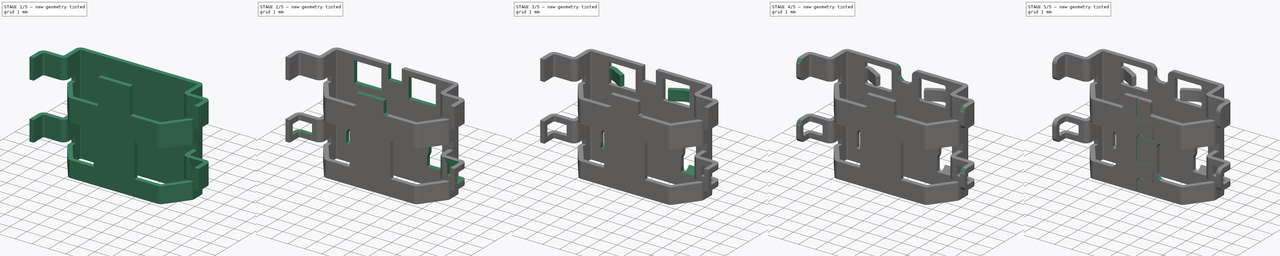
[diagram: build sequence overview — one tinted view per stage of 5, left to right]
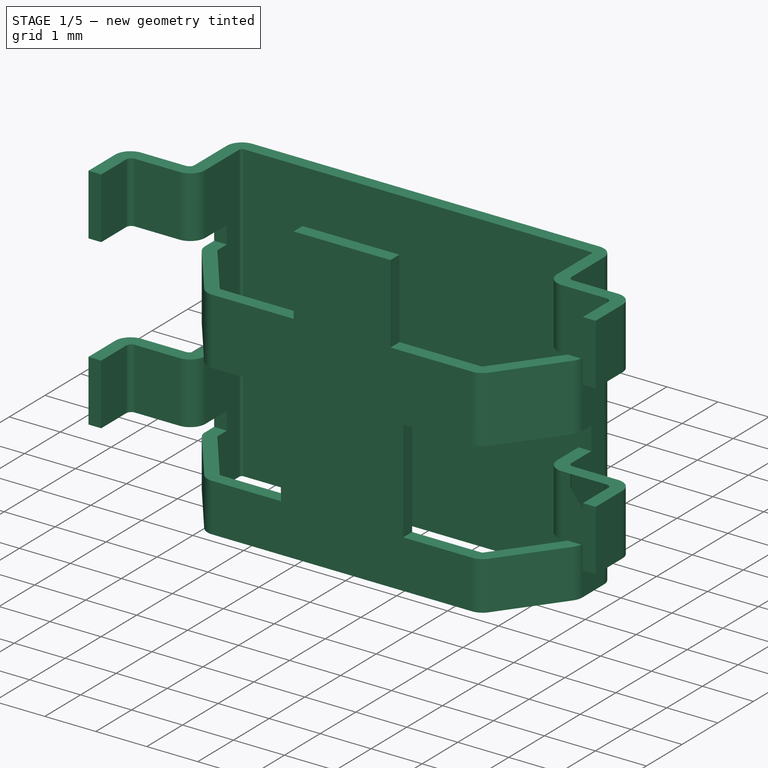
[diagram: stage 1 of 5 — iso view after this stage's code; geometry added in this stage tinted green]
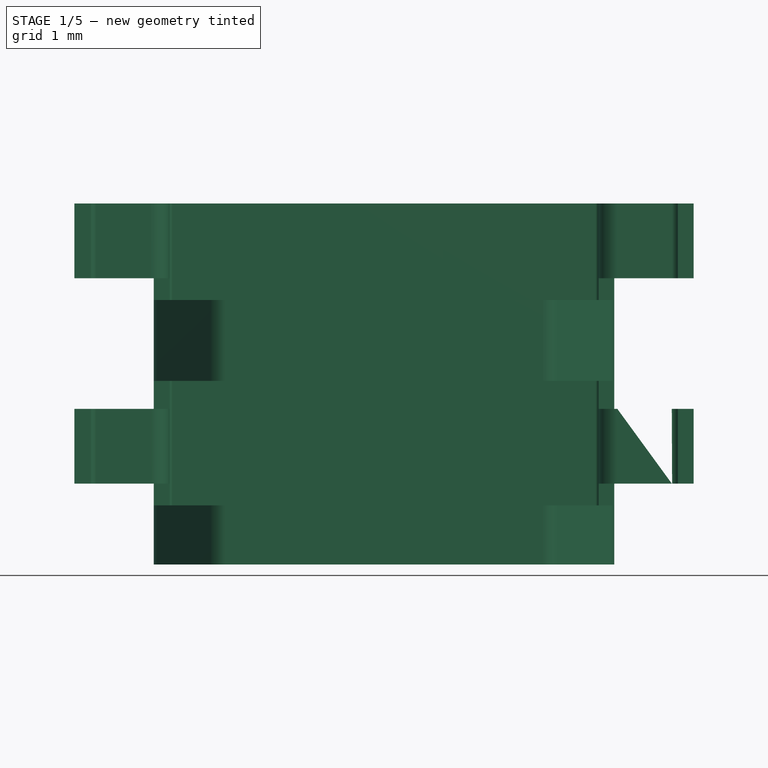
[diagram: stage 1 of 5 — front view after this stage's code; geometry added in this stage tinted green]
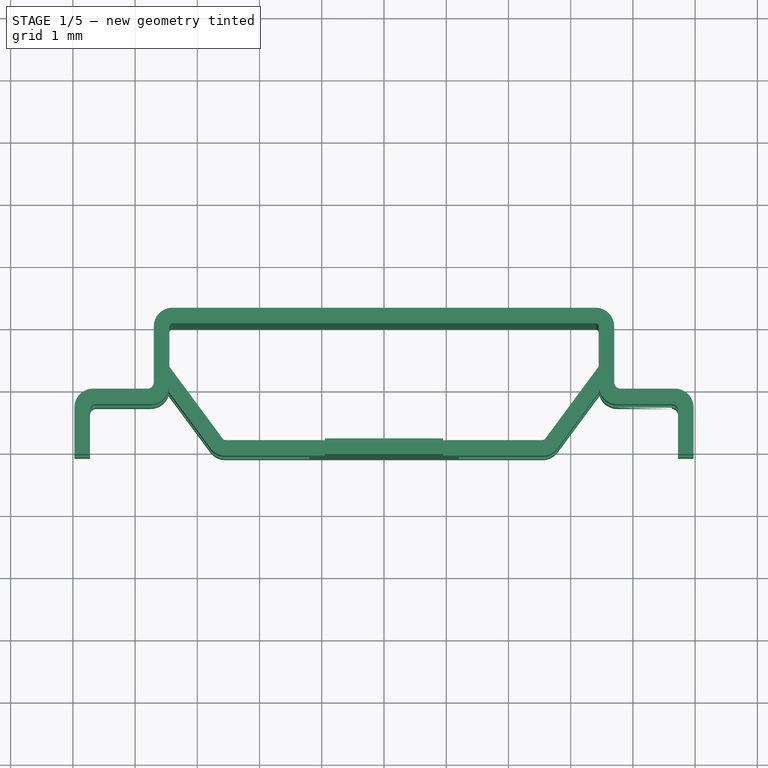
[diagram: stage 1 of 5 — top view after this stage's code; geometry added in this stage tinted green]
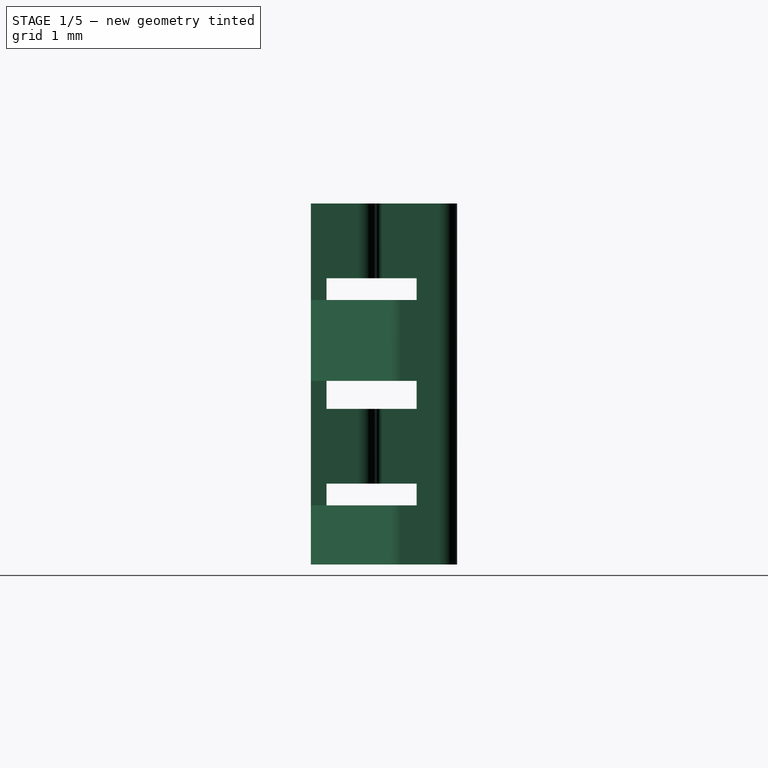
[diagram: stage 1 of 5 — right view after this stage's code; geometry added in this stage tinted green]
FCSTD DOCUMENT  (FreeCAD 0.17R12607 (Git))
Label: U02-BFD3111B0-009 Shell
License: CreativeCommons Attribution-ShareAlike
LicenseURL: http://creativecommons.org/licenses/by-sa/4.0/
objects: Sketcher::SketchObject×14, PartDesign::Fillet×10, PartDesign::Pocket×10, PartDesign::Pad×4, PartDesign::Mirrored×3, PartDesign::Plane×2, PartDesign::LinearPattern×1, PartDesign::Body×1
note: 59 computed .brp shape members not serialized (recipe doc carries the construction recipe); baked Part::Feature solids carry a one-line shape summary decoded from their .brp

FEATURE [Sketcher::SketchObject] Sketch
  MapMode = 5
  Support = -> [XY_Plane]
  sketch-geometry (9):
    g0: LineSegment StartX=-3.7 StartY=1.25 StartZ=0 EndX=3.7 EndY=1.25 EndZ=0
    g1: LineSegment [constr] StartX=3.7 StartY=1.25 StartZ=0 EndX=3.7 EndY=-1.1 EndZ=0
    g2: LineSegment [constr] StartX=3.7 StartY=-1.1 StartZ=0 EndX=-3.7 EndY=-1.1 EndZ=0
    g3: LineSegment [constr] StartX=-3.7 StartY=-1.1 StartZ=0 EndX=-3.7 EndY=1.25 EndZ=0
    g4: LineSegment StartX=3.7 StartY=1.25 StartZ=0 EndX=3.7 EndY=0.25 EndZ=0
    g5: LineSegment StartX=3.7 StartY=0.25 StartZ=0 EndX=2.7 EndY=-1.1 EndZ=0
    g6: LineSegment StartX=2.7 StartY=-1.1 StartZ=0 EndX=-2.7 EndY=-1.1 EndZ=0
    g7: LineSegment StartX=-2.7 StartY=-1.1 StartZ=0 EndX=-3.7 EndY=0.25 EndZ=0
    g8: LineSegment StartX=-3.7 StartY=0.25 StartZ=0 EndX=-3.7 EndY=1.25 EndZ=0
  constraints (27):
    c: Coincident(g0,g1)
    c: Coincident(g1,g2)
    c: Coincident(g2,g3)
    c: Coincident(g3,g0)
    c: Horizontal(g0)
    c: Horizontal(g2)
    c: Vertical(g1)
    c: Vertical(g3)
    c: Symmetric(g0,g0,g-2)
    c: DistanceX(g0,g0) = 7.4
    c: DistanceY(g1,g1) = 2.35
    c: DistanceY(g-1,g0) = 1.25
    c: PointOnObject(g4,g1)
    c: Vertical(g4)
    c: Coincident(g4,g5)
    c: PointOnObject(g5,g2)
    c: Coincident(g5,g6)
    c: PointOnObject(g6,g2)
    c: Coincident(g6,g7)
    c: PointOnObject(g7,g3)
    c: Coincident(g7,g8)
    c: Coincident(g8,g0)
    c: Equal(g7,g5)
    c: Equal(g4,g8)
    c: DistanceX(g6,g6) = 5.4
    c: DistanceY(g4,g4) = 1
    c: Coincident(g4,g0)
FEATURE [PartDesign::Pad] Pad
  Length = 5.8
  Length2 = 100
  Profile = -> Sketch
  Type = 0
FEATURE [PartDesign::Fillet] Fillet
  Base = -> Pad [Edge2,Edge5,Edge1,Edge14,Edge11,Edge8]
  BaseFeature = -> Pad
  Radius = 0.3
FEATURE [Sketcher::SketchObject] Sketch001
  ExternalGeometry = -> [Fillet]
  MapMode = 5
  Placement = pos=(0,0,5.8) rot=(0,0,1;0rad)
  Support = -> [Fillet]
  sketch-geometry (14):
    g0: LineSegment StartX=0 StartY=1 StartZ=0 EndX=3.4 EndY=1 EndZ=0
    g1: LineSegment StartX=0 StartY=-0.85 StartZ=0 EndX=2.54888 EndY=-0.85 EndZ=0
    g2: LineSegment StartX=2.58906 StartY=-0.829763 StartZ=0 EndX=3.44018 EndY=0.319247 EndZ=0
    g3: LineSegment StartX=3.45 StartY=0.349009 StartZ=0 EndX=3.45 EndY=0.95 EndZ=0
    g4: ArcOfCircle CenterX=3.4 CenterY=0.95 CenterZ=0 NormalX=0 NormalY=0 NormalZ=1 AngleXU=0 Radius=0.05 StartAngle=3.3576e-08 EndAngle=1.5708
    g5: ArcOfCircle CenterX=3.4 CenterY=0.349009 CenterZ=0 NormalX=0 NormalY=0 NormalZ=1 AngleXU=0 Radius=0.05 StartAngle=5.64563 EndAngle=6.28319
    g6: ArcOfCircle CenterX=2.54888 CenterY=-0.8 CenterZ=0 NormalX=0 NormalY=0 NormalZ=1 AngleXU=0 Radius=0.05 StartAngle=4.7124 EndAngle=5.6456
    g7: LineSegment StartX=0 StartY=1 StartZ=0 EndX=-3.4 EndY=1 EndZ=0
    g8: LineSegment StartX=-3.45 StartY=0.95 StartZ=0 EndX=-3.45 EndY=0.349009 EndZ=0
    g9: LineSegment StartX=0 StartY=-0.85 StartZ=0 EndX=-2.54888 EndY=-0.85 EndZ=0
    g10: ArcOfCircle CenterX=-3.4 CenterY=0.95 CenterZ=0 NormalX=0 NormalY=0 NormalZ=1 AngleXU=0 Radius=0.05 StartAngle=1.5708 EndAngle=3.14159
    g11: LineSegment StartX=-3.44018 StartY=0.319247 StartZ=0 EndX=-2.58906 EndY=-0.829763 EndZ=0
    g12: ArcOfCircle CenterX=-3.4 CenterY=0.349009 CenterZ=0 NormalX=0 NormalY=0 NormalZ=1 AngleXU=0 Radius=0.05 StartAngle=3.14159 EndAngle=3.77914
    g13: ArcOfCircle CenterX=-2.54888 CenterY=-0.800001 CenterZ=0 NormalX=0 NormalY=0 NormalZ=1 AngleXU=0 Radius=0.0499992 StartAngle=3.77917 EndAngle=4.71239
  constraints (39):
    c: PointOnObject(g0,g-2)
    c: Horizontal(g0)
    c: PointOnObject(g1,g-2)
    c: Horizontal(g1)
    c: Vertical(g3)
    c: Coincident(g4,g-3)
    c: Coincident(g4,g0)
    c: Coincident(g4,g3)
    c: Tangent(g4,g0)
    c: Tangent(g3,g4)
    c: Distance(g-3,g0) = 0.25
    c: Coincident(g5,g-4)
    c: Coincident(g5,g3)
    c: Coincident(g5,g2)
    c: Coincident(g6,g-5)
    c: Coincident(g6,g2)
    c: Coincident(g6,g1)
    c: Tangent(g3,g5)
    c: Tangent(g5,g2)
    c: Tangent(g6,g1)
    c: Distance(g-5,g1) = 0.25
    c: Coincident(g7,g0)
    c: Coincident(g9,g1)
    c: Coincident(g10,g7)
    c: Coincident(g10,g8)
    c: Symmetric(g0,g7,g-2)
    c: Symmetric(g8,g3,g-2)
    c: Coincident(g12,g8)
    c: Coincident(g12,g11)
    c: Coincident(g13,g11)
    c: Coincident(g13,g9)
    c: Symmetric(g8,g3,g-2)
    c: Symmetric(g11,g2,g-2)
    c: Symmetric(g11,g2,g-2)
    c: Symmetric(g9,g1,g-2)
    c: Tangent(g9,g13)
    c: Tangent(g11,g12)
    c: Tangent(g10,g7)
    c: Distance(g-5,g2) = 0.25
FEATURE [PartDesign::Pocket] Pocket
  BaseFeature = -> Fillet
  Length = 5
  Profile = -> Sketch001
  Type = 1
FEATURE [Sketcher::SketchObject] Sketch002
  ExternalGeometry = -> [Pocket]
  MapMode = 5
  Placement = pos=(0,-1.1,0) rot=(1,0,0;1.5708rad)
  Support = -> [Pocket]
  sketch-geometry (16):
    g0: LineSegment StartX=3.7 StartY=0.95 StartZ=0 EndX=1.2 EndY=0.95 EndZ=0
    g1: LineSegment StartX=1.2 StartY=0.95 StartZ=0 EndX=1.2 EndY=2.95 EndZ=0
    g2: LineSegment StartX=1.2 StartY=2.95 StartZ=0 EndX=3.7 EndY=2.95 EndZ=0
    g3: LineSegment StartX=3.7 StartY=2.95 StartZ=0 EndX=3.7 EndY=0.95 EndZ=0
    g4: LineSegment StartX=3.7 StartY=5.8 StartZ=0 EndX=0.95 EndY=5.8 EndZ=0
    g5: LineSegment StartX=0.95 StartY=5.8 StartZ=0 EndX=0.95 EndY=4.25 EndZ=0
    g6: LineSegment StartX=0.95 StartY=4.25 StartZ=0 EndX=3.7 EndY=4.25 EndZ=0
    g7: LineSegment StartX=3.7 StartY=4.25 StartZ=0 EndX=3.7 EndY=5.8 EndZ=0
    g8: LineSegment StartX=-3.7 StartY=5.8 StartZ=0 EndX=-0.95 EndY=5.8 EndZ=0
    g9: LineSegment StartX=-0.95 StartY=5.8 StartZ=0 EndX=-0.95 EndY=4.25 EndZ=0
    g10: LineSegment StartX=-0.95 StartY=4.25 StartZ=0 EndX=-3.7 EndY=4.25 EndZ=0
    g11: LineSegment StartX=-3.7 StartY=4.25 StartZ=0 EndX=-3.7 EndY=5.8 EndZ=0
    g12: LineSegment StartX=-3.7 StartY=2.95 StartZ=0 EndX=-1.2 EndY=2.95 EndZ=0
    g13: LineSegment StartX=-1.2 StartY=2.95 StartZ=0 EndX=-1.2 EndY=0.95 EndZ=0
    g14: LineSegment StartX=-1.2 StartY=0.95 StartZ=0 EndX=-3.7 EndY=0.95 EndZ=0
    g15: LineSegment StartX=-3.7 StartY=0.95 StartZ=0 EndX=-3.7 EndY=2.95 EndZ=0
  constraints (43):
    c: Coincident(g0,g1)
    c: Coincident(g1,g2)
    c: Coincident(g2,g3)
    c: Coincident(g3,g0)
    c: Horizontal(g0)
    c: Horizontal(g2)
    c: Vertical(g1)
    c: Vertical(g3)
    c: PointOnObject(g0,g-3)
    c: Coincident(g4,g5)
    c: Coincident(g5,g6)
    c: Coincident(g6,g7)
    c: Coincident(g7,g4)
    c: Horizontal(g4)
    c: Horizontal(g6)
    c: Vertical(g5)
    c: Vertical(g7)
    c: Coincident(g4,g-3)
    c: Distance(g-3,g0) = 0.95
    c: DistanceY(g3,g3) = 2
    c: DistanceY(g-1,g6) = 4.25
    c: DistanceX(g0,g0) = 2.5
    c: DistanceX(g4,g4) = 2.75
    c: Coincident(g8,g9)
    c: Coincident(g9,g10)
    c: Coincident(g10,g11)
    c: Coincident(g11,g8)
    c: Horizontal(g8)
    c: Horizontal(g10)
    c: Vertical(g9)
    c: Vertical(g11)
    c: Coincident(g12,g13)
    c: Coincident(g13,g14)
    c: Coincident(g14,g15)
    c: Coincident(g15,g12)
    c: Horizontal(g12)
    c: Horizontal(g14)
    c: Vertical(g13)
    c: Vertical(g15)
    c: Symmetric(g4,g8,g-2)
    c: Symmetric(g9,g5,g-2)
    c: Symmetric(g14,g0,g-2)
    c: Symmetric(g12,g1,g-2)
FEATURE [PartDesign::Pocket] Pocket001
  BaseFeature = -> Pocket
  Length = 1.7
  Profile = -> Sketch002
  Type = 0
FEATURE [Sketcher::SketchObject] Sketch003
  ExternalGeometry = -> [Pocket001]
  MapMode = 5
  Placement = pos=(0,0,5.8) rot=(0,0,1;0rad)
  Support = -> [Pocket001]
  sketch-geometry (24):
    g0: LineSegment StartX=3.45 StartY=-1.587e-08 StartZ=0 EndX=3.45 EndY=0.6 EndZ=0
    g1: LineSegment StartX=3.45 StartY=0.6 StartZ=0 EndX=3.7 EndY=0.6 EndZ=0
    g2: LineSegment StartX=4.975 StartY=-0.35 StartZ=0 EndX=4.975 EndY=-1.1 EndZ=0
    g3: LineSegment StartX=4.975 StartY=-1.1 StartZ=0 EndX=4.725 EndY=-1.1 EndZ=0
    g4: LineSegment StartX=4.725 StartY=-1.1 StartZ=0 EndX=4.725 EndY=-0.4 EndZ=0
    g5: LineSegment StartX=4.625 StartY=-0.3 StartZ=0 EndX=3.75 EndY=-0.3 EndZ=0
    g6: ArcOfCircle CenterX=4.675 CenterY=-0.35 CenterZ=0 NormalX=0 NormalY=0 NormalZ=1 AngleXU=0 Radius=0.3 StartAngle=5.6586e-08 EndAngle=1.5708
    g7: ArcOfCircle CenterX=3.75 CenterY=0 CenterZ=0 NormalX=0 NormalY=0 NormalZ=1 AngleXU=0 Radius=0.3 StartAngle=3.14159 EndAngle=4.71239
    g8: ArcOfCircle CenterX=4.625 CenterY=-0.4 CenterZ=0 NormalX=0 NormalY=0 NormalZ=1 AngleXU=0 Radius=0.1 StartAngle=6.28319 EndAngle=7.85398
    g9: LineSegment StartX=3.7 StartY=0.6 StartZ=0 EndX=3.7 EndY=0.05 EndZ=0
    g10: LineSegment StartX=4.675 StartY=-0.05 StartZ=0 EndX=3.8 EndY=-0.05 EndZ=0
    g11: ArcOfCircle CenterX=3.8 CenterY=0.05 CenterZ=0 NormalX=0 NormalY=0 NormalZ=1 AngleXU=0 Radius=0.1 StartAngle=3.14159 EndAngle=4.71239
    g12: LineSegment StartX=-3.7 StartY=0.05 StartZ=0 EndX=-3.7 EndY=0.6 EndZ=0
    g13: LineSegment StartX=-3.7 StartY=0.6 StartZ=0 EndX=-3.45 EndY=0.6 EndZ=0
    g14: LineSegment StartX=-3.45 StartY=0.6 StartZ=0 EndX=-3.45 EndY=-1.587e-08 EndZ=0
    g15: LineSegment StartX=-3.8 StartY=-0.05 StartZ=0 EndX=-4.675 EndY=-0.05 EndZ=0
    g16: LineSegment StartX=-4.975 StartY=-0.35 StartZ=0 EndX=-4.975 EndY=-1.1 EndZ=0
    g17: LineSegment StartX=-4.975 StartY=-1.1 StartZ=0 EndX=-4.725 EndY=-1.1 EndZ=0
    g18: LineSegment StartX=-4.725 StartY=-1.1 StartZ=0 EndX=-4.725 EndY=-0.4 EndZ=0
    g19: LineSegment StartX=-4.625 StartY=-0.3 StartZ=0 EndX=-3.75 EndY=-0.3 EndZ=0
    g20: ArcOfCircle CenterX=-3.8 CenterY=0.050003 CenterZ=0 NormalX=0 NormalY=0 NormalZ=1 AngleXU=0 Radius=0.100003 StartAngle=4.71242 EndAngle=6.28316
    g21: ArcOfCircle CenterX=-4.675 CenterY=-0.35 CenterZ=0 NormalX=0 NormalY=0 NormalZ=1 AngleXU=0 Radius=0.3 StartAngle=1.5708 EndAngle=3.14159
    g22: ArcOfCircle CenterX=-4.625 CenterY=-0.4 CenterZ=0 NormalX=0 NormalY=0 NormalZ=1 AngleXU=0 Radius=0.1 StartAngle=1.5708 EndAngle=3.14159
    g23: ArcOfCircle CenterX=-3.75 CenterY=-3.2224e-08 CenterZ=0 NormalX=0 NormalY=0 NormalZ=1 AngleXU=0 Radius=0.3 StartAngle=4.71239 EndAngle=6.28319
  constraints (68):
    c: Coincident(g0,g1)
    c: Coincident(g1,g-4)
    c: Horizontal(g1)
    c: Vertical(g0)
    c: Coincident(g0,g-4)
    c: Vertical(g2)
    c: Coincident(g3,g2)
    c: Horizontal(g3)
    c: Coincident(g4,g3)
    c: Vertical(g4)
    c: Horizontal(g5)
    c: Coincident(g6,g2)
    c: Coincident(g7,g5)
    c: Coincident(g7,g0)
    c: Equal(g1,g3)
    c: Tangent(g2,g6)
    c: Tangent(g0,g7)
    c: Tangent(g5,g7)
    c: Coincident(g8,g5)
    c: Coincident(g8,g4)
    c: Tangent(g8,g5)
    c: Tangent(g8,g4)
    c: Distance(g-3,g5) = 1.3
    c: PointOnObject(g3,g-5)
    c: DistanceX(g-2,g3) = 4.725
    c: Equal(g7,g6)
    c: Radius(g8) = 0.1
    c: PointOnObject(g9,g1)
    c: Vertical(g9)
    c: Coincident(g10,g6)
    c: Horizontal(g10)
    c: Coincident(g11,g10)
    c: Coincident(g11,g9)
    c: Equal(g8,g11)
    c: Tangent(g9,g11)
    c: Tangent(g10,g11)
    c: Coincident(g9,g1)
    c: Distance(g10,g5) = 0.25
    c: Tangent(g10,g6)
    c: Radius(g6) = 0.3
    c: Coincident(g12,g13)
    c: Coincident(g13,g14)
    c: Coincident(g16,g17)
    c: Coincident(g17,g18)
    c: Coincident(g20,g12)
    c: Coincident(g20,g15)
    c: Coincident(g21,g15)
    c: Coincident(g21,g16)
    c: Coincident(g22,g18)
    c: Coincident(g22,g19)
    c: Coincident(g23,g19)
    c: Coincident(g23,g14)
    c: Symmetric(g12,g1,g-2)
    c: Symmetric(g13,g0,g-2)
    c: Symmetric(g12,g9,g-2)
    c: Symmetric(g0,g14,g-2)
    c: Symmetric(g10,g15,g-2)
    c: Symmetric(g6,g15,g-2)
    c: Symmetric(g2,g16,g-2)
    c: Symmetric(g2,g16,g-2)
    c: Symmetric(g3,g17,g-2)
    c: Symmetric(g4,g18,g-2)
    c: Symmetric(g5,g19,g-2)
    c: Symmetric(g5,g19,g-2)
    c: Tangent(g14,g23)
    c: Tangent(g21,g16)
    c: Tangent(g19,g22)
    c: Tangent(g12,g20)
FEATURE [PartDesign::Pad] Pad001
  BaseFeature = -> Pocket001
  Length = 1.2
  Length2 = 100
  Profile = -> Sketch003
  Reversed = true
  Type = 0
FEATURE [PartDesign::LinearPattern] LinearPattern
  Direction = -> Sketch003 [N_Axis]
  Length = 3.3
  Occurrences = 2
  Originals = -> [Pad001]
  Reversed = true
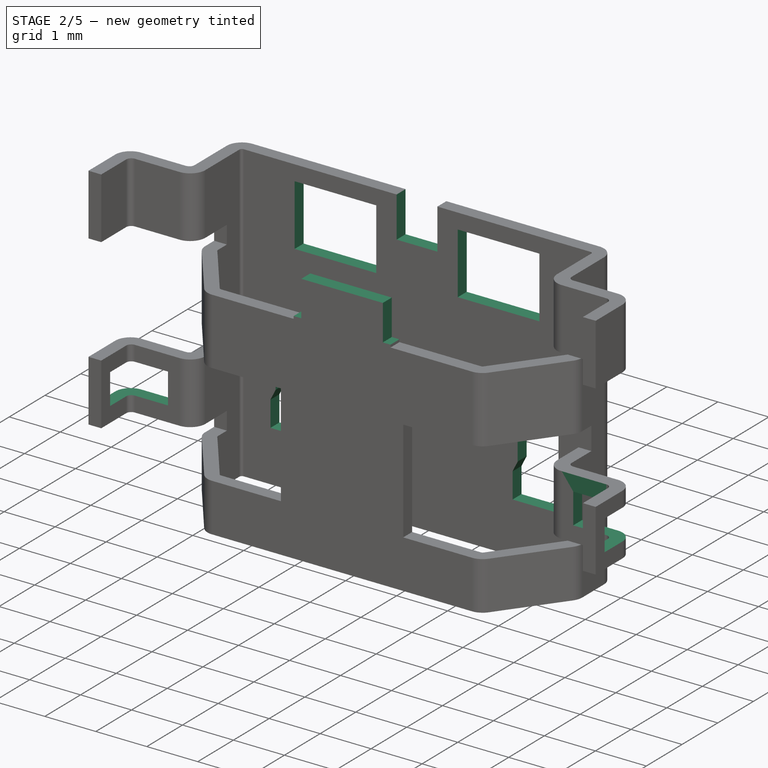
[diagram: stage 2 of 5 — iso view after this stage's code; geometry added in this stage tinted green]
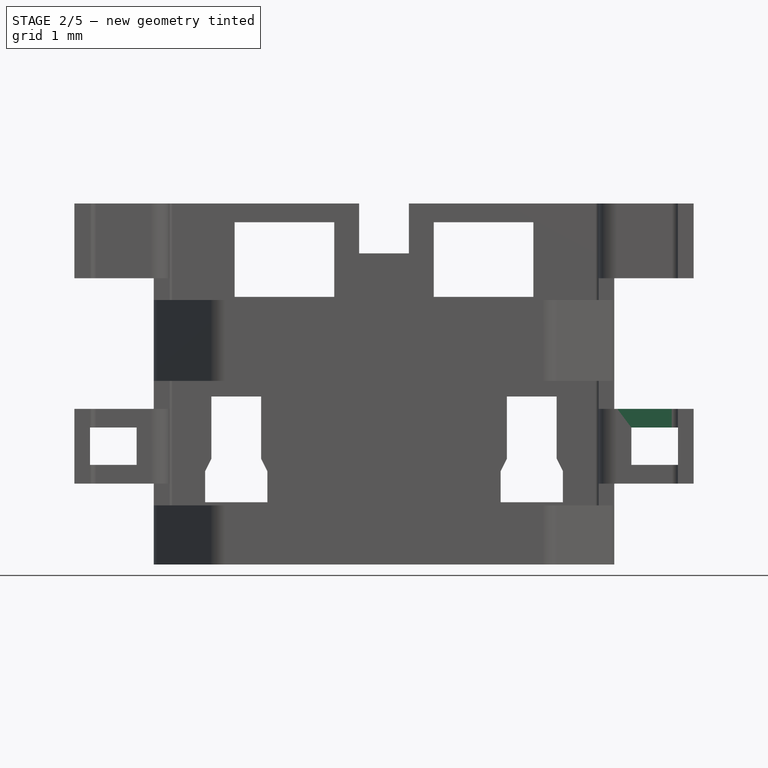
[diagram: stage 2 of 5 — front view after this stage's code; geometry added in this stage tinted green]
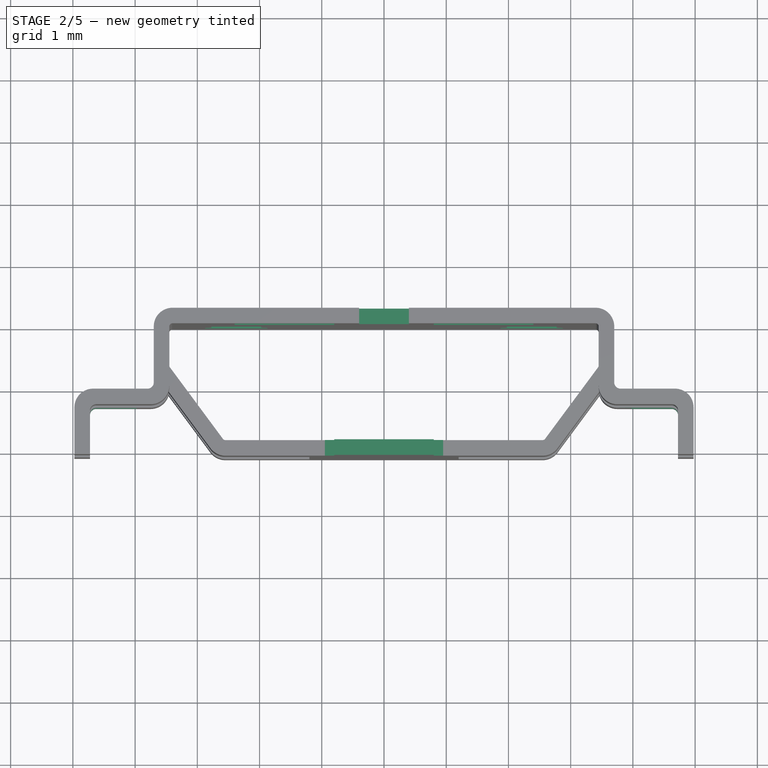
[diagram: stage 2 of 5 — top view after this stage's code; geometry added in this stage tinted green]
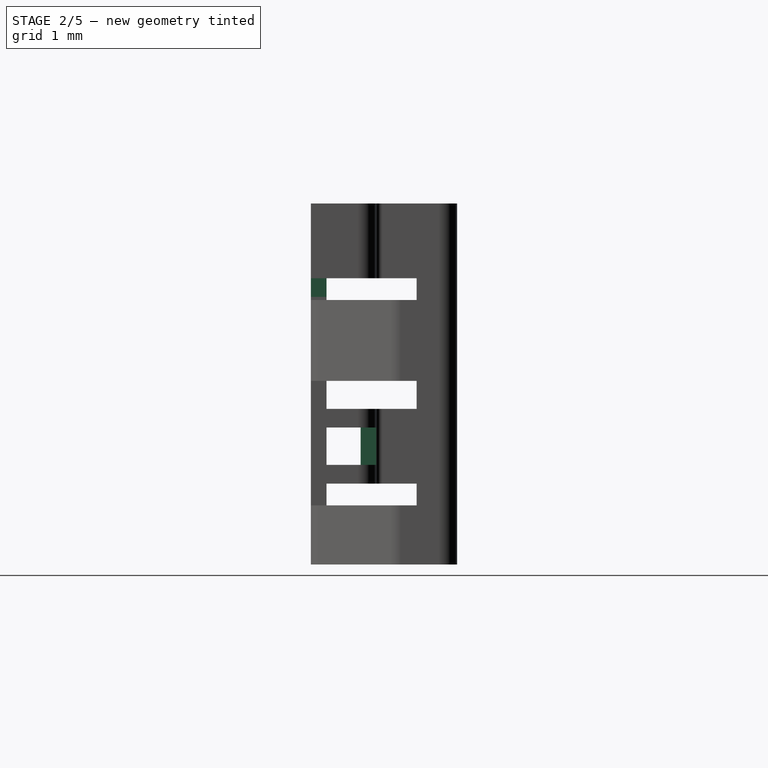
[diagram: stage 2 of 5 — right view after this stage's code; geometry added in this stage tinted green]
FEATURE [Sketcher::SketchObject] Sketch004
  ExternalGeometry = -> [LinearPattern]
  MapMode = 5
  Placement = pos=(0,-1.1,0) rot=(1,0,0;1.5708rad)
  Support = -> [LinearPattern]
  sketch-geometry (4):
    g0: LineSegment StartX=0.95 StartY=5.8 StartZ=0 EndX=-0.95 EndY=5.8 EndZ=0
    g1: LineSegment StartX=-0.95 StartY=5.8 StartZ=0 EndX=-0.95 EndY=5 EndZ=0
    g2: LineSegment StartX=-0.95 StartY=5 StartZ=0 EndX=0.95 EndY=5 EndZ=0
    g3: LineSegment StartX=0.95 StartY=5 StartZ=0 EndX=0.95 EndY=5.8 EndZ=0
  constraints (11):
    c: Coincident(g0,g1)
    c: Coincident(g1,g2)
    c: Coincident(g2,g3)
    c: Coincident(g3,g0)
    c: Horizontal(g0)
    c: Horizontal(g2)
    c: Vertical(g1)
    c: Vertical(g3)
    c: Coincident(g0,g-3)
    c: Distance(g-3,g2) = 0.75
    c: Symmetric(g2,g1,g-2)
FEATURE [PartDesign::Pocket] Pocket002
  BaseFeature = -> LinearPattern
  Length = 5
  Profile = -> Sketch004
  Type = 2
FEATURE [Sketcher::SketchObject] Sketch005
  ExternalGeometry = -> [Pocket002]
  MapMode = 5
  Placement = pos=(0,1.25,0) rot=(0,0.707107,0.707107;3.14159rad)
  Support = -> [Pocket002]
  sketch-geometry (4):
    g0: LineSegment StartX=-0.4 StartY=5.8 StartZ=0 EndX=0.4 EndY=5.8 EndZ=0
    g1: LineSegment StartX=0.4 StartY=5.8 StartZ=0 EndX=0.4 EndY=5 EndZ=0
    g2: LineSegment StartX=0.4 StartY=5 StartZ=0 EndX=-0.4 EndY=5 EndZ=0
    g3: LineSegment StartX=-0.4 StartY=5 StartZ=0 EndX=-0.4 EndY=5.8 EndZ=0
  constraints (12):
    c: Coincident(g0,g1)
    c: Coincident(g1,g2)
    c: Coincident(g2,g3)
    c: Coincident(g3,g0)
    c: Horizontal(g0)
    c: Horizontal(g2)
    c: Vertical(g1)
    c: Vertical(g3)
    c: PointOnObject(g0,g-3)
    c: Equal(g0,g1)
    c: DistanceX(g0,g0) = 0.8
    c: Symmetric(g0,g0,g-2)
FEATURE [PartDesign::Pocket] Pocket003
  BaseFeature = -> Pocket002
  Length = 5
  Profile = -> Sketch005
  Type = 2
FEATURE [Sketcher::SketchObject] Sketch006
  ExternalGeometry = -> [Pocket003]
  MapMode = 5
  Placement = pos=(-4.975,0,0) rot=(0.57735,-0.57735,-0.57735;2.0944rad)
  Support = -> [Pocket003]
  sketch-geometry (4):
    g0: LineSegment StartX=0.05 StartY=2.2 StartZ=0 EndX=0.85 EndY=2.2 EndZ=0
    g1: LineSegment StartX=0.85 StartY=2.2 StartZ=0 EndX=0.85 EndY=1.6 EndZ=0
    g2: LineSegment StartX=0.85 StartY=1.6 StartZ=0 EndX=0.05 EndY=1.6 EndZ=0
    g3: LineSegment StartX=0.05 StartY=1.6 StartZ=0 EndX=0.05 EndY=2.2 EndZ=0
  constraints (12):
    c: Coincident(g0,g1)
    c: Coincident(g1,g2)
    c: Coincident(g2,g3)
    c: Coincident(g3,g0)
    c: Horizontal(g0)
    c: Horizontal(g2)
    c: Vertical(g1)
    c: Vertical(g3)
    c: PointOnObject(g0,g-3)
    c: DistanceY(g1,g1) = 0.6
    c: DistanceX(g2,g2) = 0.8
    c: Distance(g-3,g0) = 0.3
FEATURE [PartDesign::Pocket] Pocket004
  BaseFeature = -> Pocket003
  Length = 1
  Profile = -> Sketch006
  Type = 0
FEATURE [PartDesign::Mirrored] Mirrored
  MirrorPlane = -> YZ_Plane
  Originals = -> [Pocket004]
FEATURE [Sketcher::SketchObject] Sketch007
  MapMode = 5
  Placement = pos=(0,1.25,0) rot=(0,0.707107,0.707107;3.14159rad)
  Support = -> [Mirrored]
  sketch-geometry (24):
    g0: LineSegment StartX=0.8 StartY=5.5 StartZ=0 EndX=2.4 EndY=5.5 EndZ=0
    g1: LineSegment StartX=2.4 StartY=5.5 StartZ=0 EndX=2.4 EndY=4.3 EndZ=0
    g2: LineSegment StartX=2.4 StartY=4.3 StartZ=0 EndX=0.8 EndY=4.3 EndZ=0
    g3: LineSegment StartX=0.8 StartY=4.3 StartZ=0 EndX=0.8 EndY=5.5 EndZ=0
    g4: LineSegment StartX=1.975 StartY=1.7 StartZ=0 EndX=1.975 EndY=2.7 EndZ=0
    g5: LineSegment StartX=1.975 StartY=2.7 StartZ=0 EndX=2.775 EndY=2.7 EndZ=0
    g6: LineSegment StartX=2.775 StartY=2.7 StartZ=0 EndX=2.775 EndY=1.7 EndZ=0
    g7: LineSegment StartX=2.775 StartY=1.7 StartZ=0 EndX=2.875 EndY=1.5 EndZ=0
    g8: LineSegment StartX=2.875 StartY=1.5 StartZ=0 EndX=2.875 EndY=1 EndZ=0
    g9: LineSegment StartX=2.875 StartY=1 StartZ=0 EndX=1.875 EndY=1 EndZ=0
    g10: LineSegment StartX=1.875 StartY=1 StartZ=0 EndX=1.875 EndY=1.5 EndZ=0
    g11: LineSegment StartX=1.875 StartY=1.5 StartZ=0 EndX=1.975 EndY=1.7 EndZ=0
    g12: LineSegment StartX=-2.4 StartY=5.5 StartZ=0 EndX=-0.8 EndY=5.5 EndZ=0
    g13: LineSegment StartX=-0.8 StartY=5.5 StartZ=0 EndX=-0.8 EndY=4.3 EndZ=0
    g14: LineSegment StartX=-0.8 StartY=4.3 StartZ=0 EndX=-2.4 EndY=4.3 EndZ=0
    g15: LineSegment StartX=-2.4 StartY=4.3 StartZ=0 EndX=-2.4 EndY=5.5 EndZ=0
    g16: LineSegment StartX=-2.775 StartY=1.7 StartZ=0 EndX=-2.775 EndY=2.7 EndZ=0
    g17: LineSegment StartX=-2.775 StartY=2.7 StartZ=0 EndX=-1.975 EndY=2.7 EndZ=0
    g18: LineSegment StartX=-1.975 StartY=2.7 StartZ=0 EndX=-1.975 EndY=1.7 EndZ=0
    g19: LineSegment StartX=-1.975 StartY=1.7 StartZ=0 EndX=-1.875 EndY=1.5 EndZ=0
    g20: LineSegment StartX=-1.875 StartY=1.5 StartZ=0 EndX=-1.875 EndY=1 EndZ=0
    g21: LineSegment StartX=-1.875 StartY=1 StartZ=0 EndX=-2.875 EndY=1 EndZ=0
    g22: LineSegment StartX=-2.875 StartY=1 StartZ=0 EndX=-2.875 EndY=1.5 EndZ=0
    g23: LineSegment StartX=-2.875 StartY=1.5 StartZ=0 EndX=-2.775 EndY=1.7 EndZ=0
  constraints (62):
    c: Coincident(g0,g1)
    c: Coincident(g1,g2)
    c: Coincident(g2,g3)
    c: Coincident(g3,g0)
    c: Horizontal(g0)
    c: Horizontal(g2)
    c: Vertical(g1)
    c: Vertical(g3)
    c: Vertical(g4)
    c: Coincident(g4,g5)
    c: Horizontal(g5)
    c: Coincident(g5,g6)
    c: Vertical(g6)
    c: Coincident(g6,g7)
    c: Coincident(g7,g8)
    c: Vertical(g8)
    c: Coincident(g8,g9)
    c: Coincident(g9,g10)
    c: Vertical(g10)
    c: Coincident(g10,g11)
    c: Coincident(g11,g4)
    c: Equal(g10,g8)
    c: Equal(g7,g11)
    c: Equal(g6,g4)
    c: Horizontal(g9)
    c: DistanceX(g5,g5) = 0.8
    c: DistanceX(g9,g9) = 1
    c: Equal(g9,g6)
    c: Distance(g8,g5) = 1.7
    c: DistanceY(g8,g8) = 0.5
    c: DistanceX(g9) = 1.875
    c: DistanceY(g9) = 1
    c: DistanceY(g1,g1) = 1.2
    c: DistanceX(g2) = 0.8
    c: DistanceY(g2) = 4.3
    c: DistanceX(g0,g0) = 1.6
    c: Coincident(g12,g13)
    c: Coincident(g13,g14)
    c: Coincident(g14,g15)
    c: Coincident(g15,g12)
    c: Horizontal(g12)
    c: Horizontal(g14)
    c: Vertical(g13)
    c: Vertical(g15)
    c: Symmetric(g13,g2,g-2)
    c: Symmetric(g0,g12,g-2)
    c: Coincident(g16,g17)
    c: Coincident(g17,g18)
    c: Coincident(g18,g19)
    c: Coincident(g19,g20)
    c: Coincident(g20,g21)
    c: Coincident(g21,g22)
    c: Coincident(g22,g23)
    c: Coincident(g23,g16)
    c: Symmetric(g9,g20,g-2)
    c: Symmetric(g21,g8,g-2)
    c: Symmetric(g22,g7,g-2)
    c: Symmetric(g16,g6,g-2)
    c: Symmetric(g16,g5,g-2)
    c: Symmetric(g17,g4,g-2)
    c: Symmetric(g18,g4,g-2)
    c: Symmetric(g19,g10,g-2)
FEATURE [PartDesign::Pocket] Pocket005
  BaseFeature = -> Mirrored
  Length = 0.25
  Profile = -> Sketch007
  Type = 1
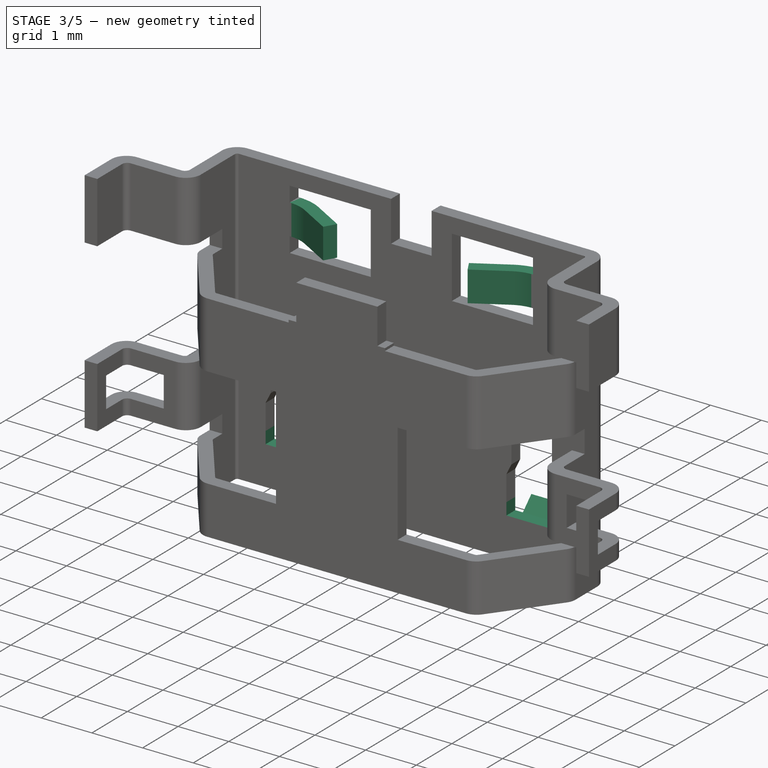
[diagram: stage 3 of 5 — iso view after this stage's code; geometry added in this stage tinted green]
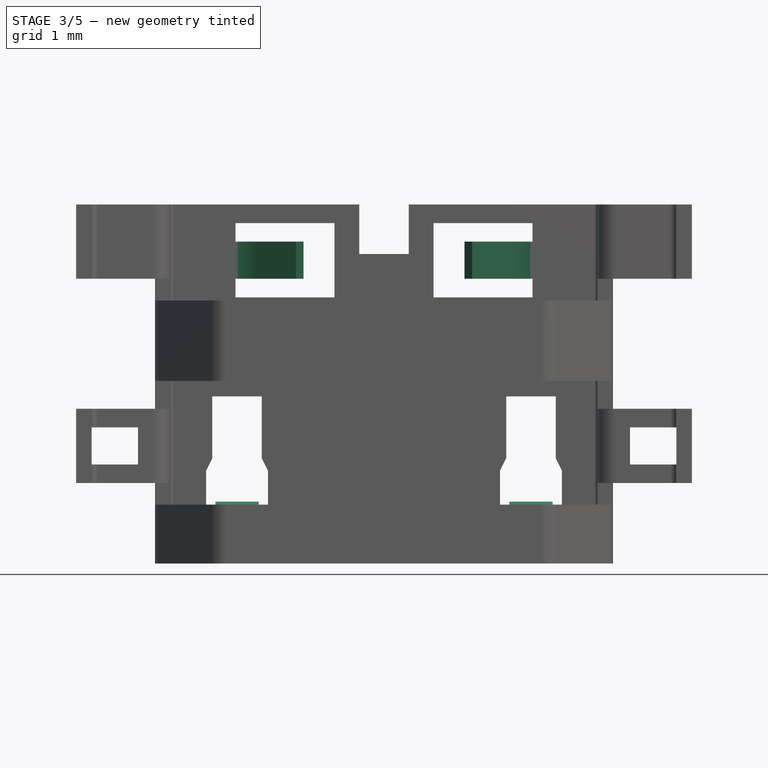
[diagram: stage 3 of 5 — front view after this stage's code; geometry added in this stage tinted green]
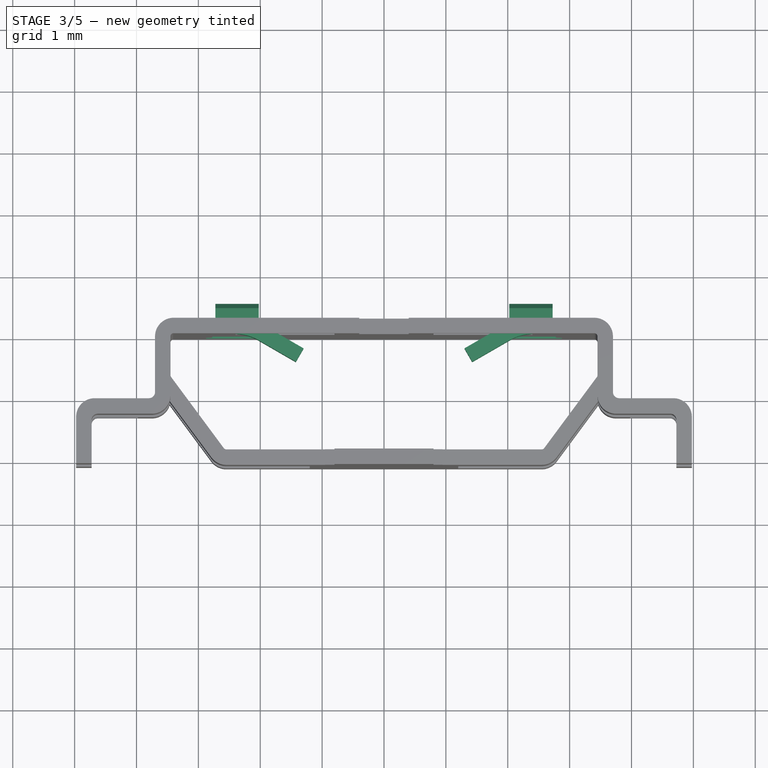
[diagram: stage 3 of 5 — top view after this stage's code; geometry added in this stage tinted green]
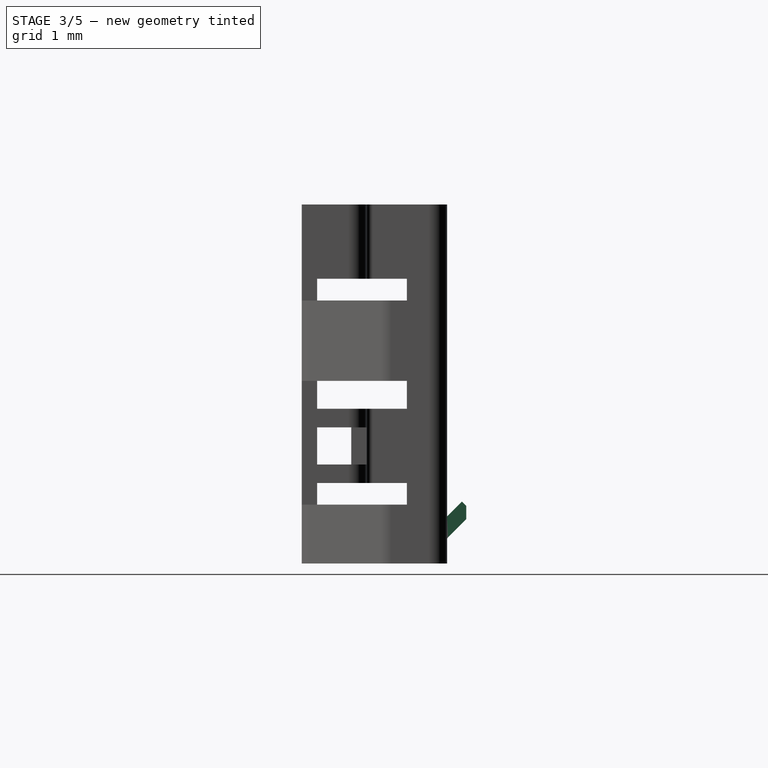
[diagram: stage 3 of 5 — right view after this stage's code; geometry added in this stage tinted green]
FEATURE [PartDesign::Plane] DatumPlane
  AttachmentOffset = pos=(0,0,-4.9) rot=(0,0,1;0rad)
  MapMode = 5
  Placement = pos=(0,0,4.9) rot=(1,0,0;3.14159rad)
  Support = -> [Pocket005]
FEATURE [Sketcher::SketchObject] Sketch008
  ExternalGeometry = -> [Pocket005]
  MapMode = 5
  Placement = pos=(0,0,4.9) rot=(1,0,0;3.14159rad)
  Support = -> [DatumPlane]
  sketch-geometry (6):
    g0: LineSegment StartX=-2.03504 StartY=-0.902208 StartZ=0 EndX=-1.425 EndY=-0.55 EndZ=0
    g1: LineSegment StartX=-1.425 StartY=-0.55 StartZ=0 EndX=-1.3 EndY=-0.766506 EndZ=0
    g2: LineSegment StartX=-1.3 StartY=-0.766506 StartZ=0 EndX=-1.91005 EndY=-1.11872 EndZ=0
    g3: ArcOfCircle CenterX=-2.4 CenterY=-0.270096 CenterZ=0 NormalX=0 NormalY=0 NormalZ=1 AngleXU=0 Radius=0.729904 StartAngle=4.71239 EndAngle=5.236
    g4: ArcOfCircle CenterX=-2.4 CenterY=-0.270096 CenterZ=0 NormalX=0 NormalY=0 NormalZ=1 AngleXU=0 Radius=0.979904 StartAngle=4.71239 EndAngle=5.23599
    g5: LineSegment StartX=-2.4 StartY=-1 StartZ=0 EndX=-2.4 EndY=-1.25 EndZ=0
  constraints (18):
    c: Coincident(g0,g1)
    c: Coincident(g1,g2)
    c: Coincident(g3,g0)
    c: Coincident(g3,g-3)
    c: Coincident(g4,g2)
    c: Coincident(g4,g-3)
    c: Coincident(g5,g3)
    c: Coincident(g5,g4)
    c: Tangent(g0,g3)
    c: Tangent(g2,g4)
    c: Perpendicular(g1,g0)
    c: Perpendicular(g2,g1)
    c: Distance(g1,g5) = 1.1
    c: Perpendicular(g3,g5)
    c: Perpendicular(g4,g5)
    c: Distance(g0,g2) = 0.25
    c: Angle(g5,g0) = 2.0944
    c: Distance(g0,g-4) = 0.7
FEATURE [PartDesign::Pad] Pad002
  BaseFeature = -> Pocket005
  Length = 0.6
  Length2 = 100
  Midplane = true
  Profile = -> Sketch008
  Type = 0
FEATURE [PartDesign::Mirrored] Mirrored001
  MirrorPlane = -> YZ_Plane
  Originals = -> [Pad002]
FEATURE [PartDesign::Plane] DatumPlane001
  AttachmentOffset = pos=(0,0,-2.375) rot=(0,0,1;0rad)
  MapMode = 5
  Placement = pos=(-2.375,0,0) rot=(0.57735,0.57735,0.57735;2.0944rad)
  Support = -> [YZ_Plane]
FEATURE [Sketcher::SketchObject] Sketch009
  ExternalGeometry = -> [Mirrored001]
  MapMode = 5
  Placement = pos=(-2.375,0,0) rot=(0.57735,0.57735,0.57735;2.0944rad)
  Support = -> [DatumPlane001]
  sketch-geometry (7):
    g0: LineSegment StartX=1.26464 StartY=0.421802 StartZ=0 EndX=1.56 EndY=0.717157 EndZ=0
    g1: LineSegment StartX=1.56 StartY=0.717157 StartZ=0 EndX=1.56 EndY=0.929289 EndZ=0
    g2: LineSegment StartX=1.56 StartY=0.929289 StartZ=0 EndX=1.48929 EndY=1 EndZ=0
    g3: LineSegment StartX=1.48929 StartY=1 StartZ=0 EndX=1.08787 EndY=0.598579 EndZ=0
    g4: ArcOfCircle CenterX=1.3 CenterY=0.386447 CenterZ=0 NormalX=0 NormalY=0 NormalZ=1 AngleXU=0 Radius=0.05 StartAngle=2.35619 EndAngle=3.14159
    g5: ArcOfCircle CenterX=1.3 CenterY=0.386447 CenterZ=0 NormalX=0 NormalY=0 NormalZ=1 AngleXU=0 Radius=0.3 StartAngle=2.35619 EndAngle=3.14159
    g6: LineSegment StartX=1 StartY=0.386447 StartZ=0 EndX=1.25 EndY=0.386447 EndZ=0
  constraints (23):
    c: Coincident(g0,g1)
    c: Vertical(g1)
    c: Coincident(g1,g2)
    c: Coincident(g2,g3)
    c: Coincident(g4,g0)
    c: Coincident(g5,g3)
    c: Tangent(g3,g5)
    c: Tangent(g4,g0)
    c: Perpendicular(g3,g2)
    c: Parallel(g3,g0)
    c: Angle(g1,g0) = 2.35619
    c: Distance(g2,g0) = 0.25
    c: Distance(g1,g3) = 0.1
    c: Coincident(g6,g5)
    c: Coincident(g6,g4)
    c: Horizontal(g6)
    c: PointOnObject(g5,g-4)
    c: PointOnObject(g4,g-5)
    c: Perpendicular(g4,g6)
    c: Perpendicular(g5,g6)
    c: Distance(g1,g-4) = 0.56
    c: Radius(g5) = 0.3
    c: DistanceY(g-1,g2) = 1
FEATURE [PartDesign::Pad] Pad003
  BaseFeature = -> Mirrored001
  Length = 0.7
  Length2 = 100
  Midplane = true
  Profile = -> Sketch009
  Type = 0
FEATURE [PartDesign::Mirrored] Mirrored002
  MirrorPlane = -> YZ_Plane
  Originals = -> [Pad003]
FEATURE [Sketcher::SketchObject] Sketch010
  ExternalGeometry = -> [Mirrored002]
  MapMode = 5
  Placement = pos=(0,0,1) rot=(0,0,1;0rad)
  Support = -> [Mirrored002]
  sketch-geometry (8):
    g0: LineSegment StartX=-2.875 StartY=1.25 StartZ=0 EndX=-1.875 EndY=1.25 EndZ=0
    g1: LineSegment StartX=-1.875 StartY=1.25 StartZ=0 EndX=-1.875 EndY=1 EndZ=0
    g2: LineSegment StartX=-1.875 StartY=1 StartZ=0 EndX=-2.875 EndY=1 EndZ=0
    g3: LineSegment StartX=-2.875 StartY=1 StartZ=0 EndX=-2.875 EndY=1.25 EndZ=0
    g4: LineSegment StartX=1.875 StartY=1.25 StartZ=0 EndX=2.875 EndY=1.25 EndZ=0
    g5: LineSegment StartX=2.875 StartY=1.25 StartZ=0 EndX=2.875 EndY=1 EndZ=0
    g6: LineSegment StartX=2.875 StartY=1 StartZ=0 EndX=1.875 EndY=1 EndZ=0
    g7: LineSegment StartX=1.875 StartY=1 StartZ=0 EndX=1.875 EndY=1.25 EndZ=0
  constraints (20):
    c: Coincident(g0,g1)
    c: Coincident(g1,g2)
    c: Coincident(g2,g3)
    c: Coincident(g3,g0)
    c: Horizontal(g0)
    c: Horizontal(g2)
    c: Vertical(g1)
    c: Vertical(g3)
    c: Coincident(g0,g-4)
    c: Coincident(g1,g-3)
    c: Coincident(g4,g5)
    c: Coincident(g5,g6)
    c: Coincident(g6,g7)
    c: Coincident(g7,g4)
    c: Horizontal(g4)
    c: Horizontal(g6)
    c: Vertical(g5)
    c: Vertical(g7)
    c: Coincident(g4,g-5)
    c: Coincident(g5,g-6)
FEATURE [PartDesign::Pocket] Pocket006
  BaseFeature = -> Mirrored002
  Length = 0.237
  Profile = -> Sketch010
  Type = 0
FEATURE [Sketcher::SketchObject] Sketch011
  MapMode = 5
  Placement = pos=(0,1.25,0) rot=(0,0.707107,0.707107;3.14159rad)
  Support = -> [Pocket006]
  sketch-geometry (8):
    g0: LineSegment StartX=2 StartY=3.95 StartZ=0 EndX=2.85 EndY=3.95 EndZ=0
    g1: LineSegment StartX=2.85 StartY=3.95 StartZ=0 EndX=2.85 EndY=3.4 EndZ=0
    g2: LineSegment StartX=2.85 StartY=3.4 StartZ=0 EndX=2 EndY=3.4 EndZ=0
    g3: LineSegment StartX=2 StartY=3.4 StartZ=0 EndX=2 EndY=3.95 EndZ=0
    g4: LineSegment StartX=-2.85 StartY=3.95 StartZ=0 EndX=-2 EndY=3.95 EndZ=0
    g5: LineSegment StartX=-2 StartY=3.95 StartZ=0 EndX=-2 EndY=3.4 EndZ=0
    g6: LineSegment StartX=-2 StartY=3.4 StartZ=0 EndX=-2.85 EndY=3.4 EndZ=0
    g7: LineSegment StartX=-2.85 StartY=3.4 StartZ=0 EndX=-2.85 EndY=3.95 EndZ=0
  constraints (22):
    c: Coincident(g0,g1)
    c: Coincident(g1,g2)
    c: Coincident(g2,g3)
    c: Coincident(g3,g0)
    c: Horizontal(g0)
    c: Horizontal(g2)
    c: Vertical(g1)
    c: Vertical(g3)
    c: Coincident(g4,g5)
    c: Coincident(g5,g6)
    c: Coincident(g6,g7)
    c: Coincident(g7,g4)
    c: Horizontal(g4)
    c: Horizontal(g6)
    c: Vertical(g5)
    c: Vertical(g7)
    c: DistanceX(g2) = 2
    c: DistanceY(g2) = 3.4
    c: DistanceY(g1,g1) = 0.55
    c: DistanceX(g2,g2) = 0.85
    c: Symmetric(g0,g4,g-2)
    c: Symmetric(g6,g1,g-2)
FEATURE [PartDesign::Pocket] Pocket007
  BaseFeature = -> Pocket006
  Length = 0.1
  Profile = -> Sketch011
  Type = 0
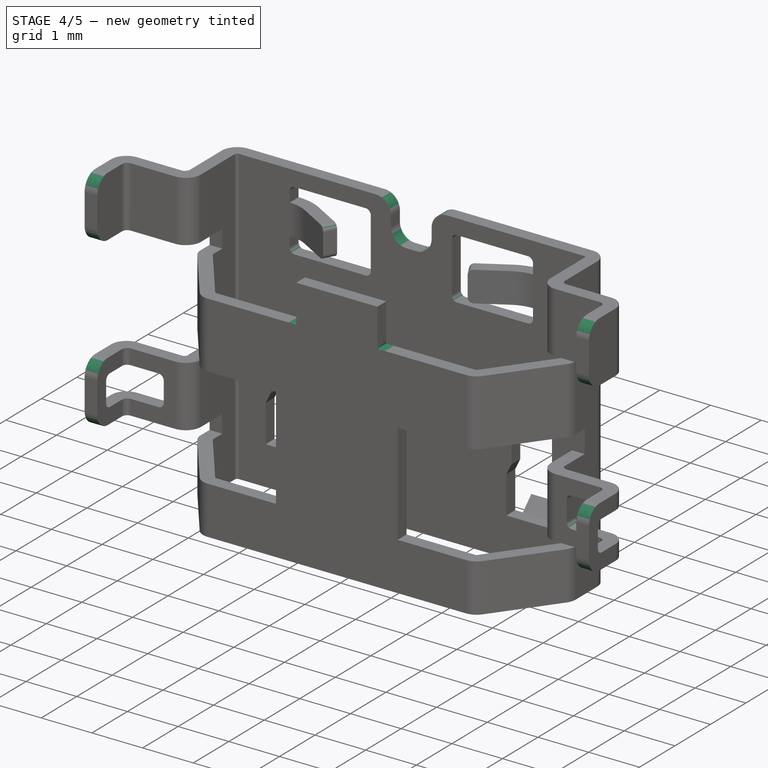
[diagram: stage 4 of 5 — iso view after this stage's code; geometry added in this stage tinted green]
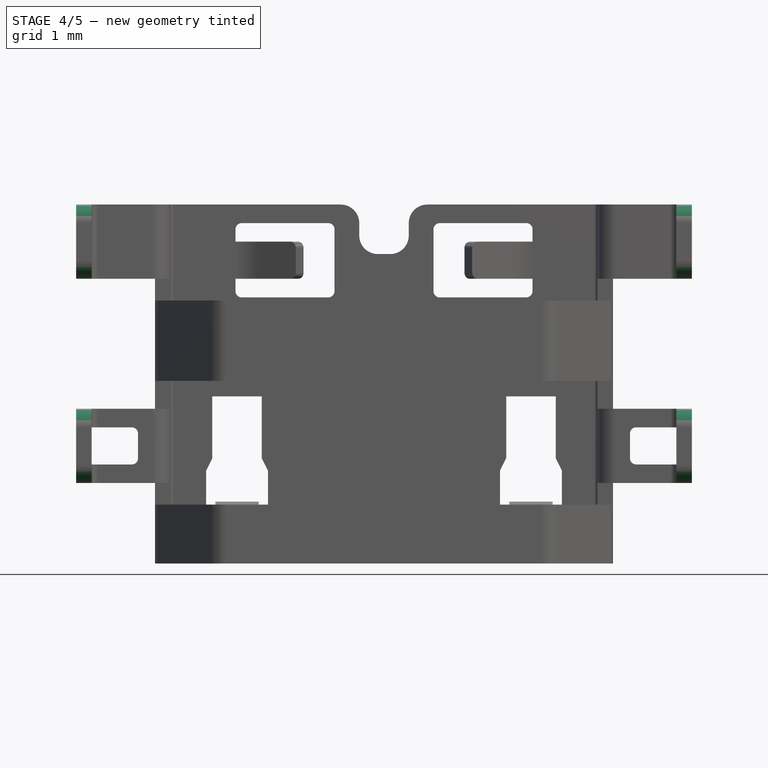
[diagram: stage 4 of 5 — front view after this stage's code; geometry added in this stage tinted green]
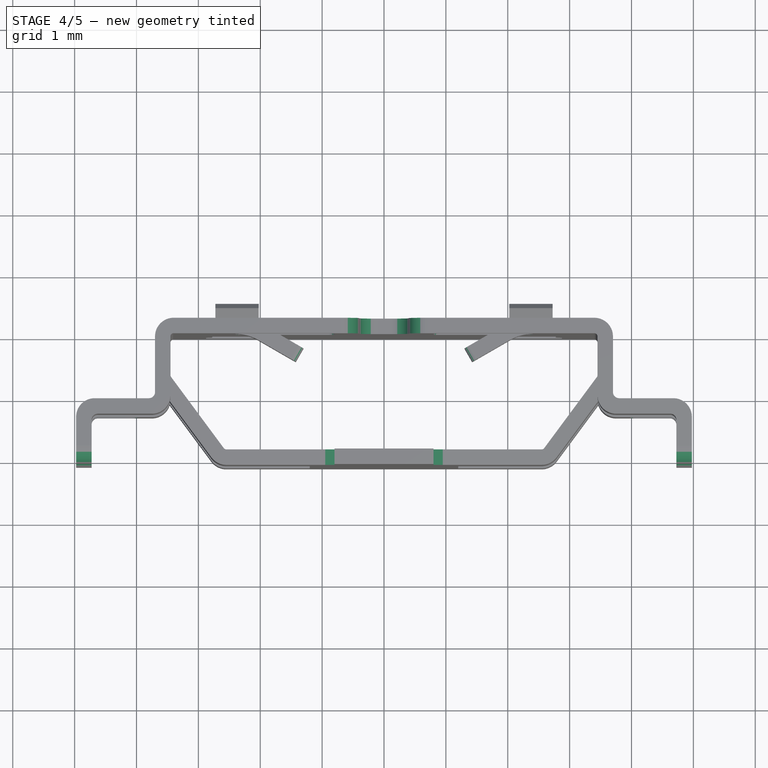
[diagram: stage 4 of 5 — top view after this stage's code; geometry added in this stage tinted green]
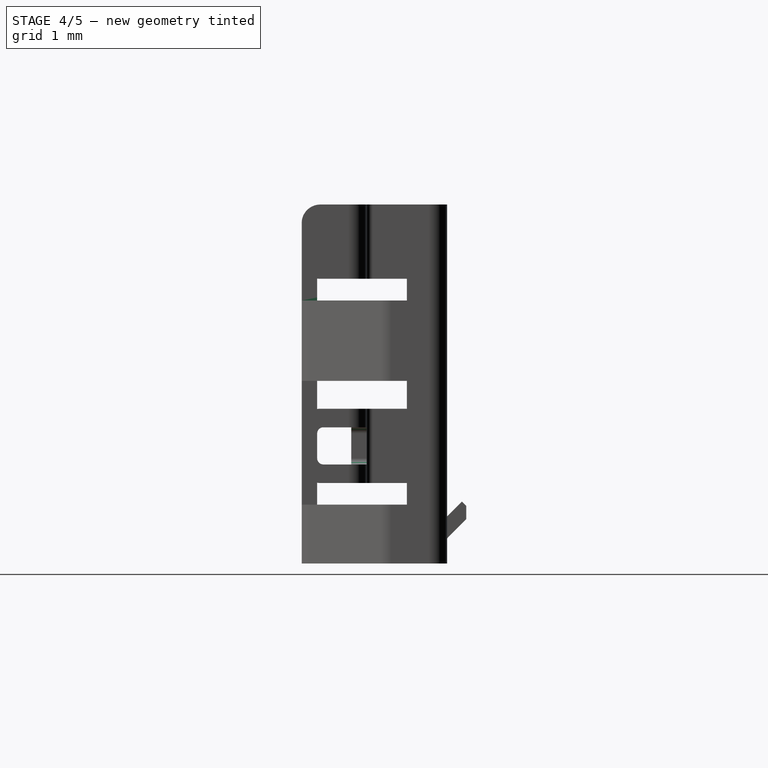
[diagram: stage 4 of 5 — right view after this stage's code; geometry added in this stage tinted green]
FEATURE [Sketcher::SketchObject] Sketch012
  ExternalGeometry = -> [Pocket007]
  MapMode = 5
  Placement = pos=(0,0,4.3) rot=(0,0,1;0rad)
  Support = -> [Pocket007]
  sketch-geometry (8):
    g0: LineSegment StartX=-0.95 StartY=-0.85 StartZ=0 EndX=-0.8 EndY=-0.85 EndZ=0
    g1: LineSegment StartX=-0.8 StartY=-0.85 StartZ=0 EndX=-0.8 EndY=-1.1 EndZ=0
    g2: LineSegment StartX=-0.8 StartY=-1.1 StartZ=0 EndX=-0.95 EndY=-1.1 EndZ=0
    g3: LineSegment StartX=-0.95 StartY=-1.1 StartZ=0 EndX=-0.95 EndY=-0.85 EndZ=0
    g4: LineSegment StartX=0.8 StartY=-0.85 StartZ=0 EndX=0.95 EndY=-0.85 EndZ=0
    g5: LineSegment StartX=0.95 StartY=-0.85 StartZ=0 EndX=0.95 EndY=-1.1 EndZ=0
    g6: LineSegment StartX=0.95 StartY=-1.1 StartZ=0 EndX=0.8 EndY=-1.1 EndZ=0
    g7: LineSegment StartX=0.8 StartY=-1.1 StartZ=0 EndX=0.8 EndY=-0.85 EndZ=0
  constraints (20):
    c: Coincident(g0,g1)
    c: Coincident(g1,g2)
    c: Coincident(g2,g3)
    c: Coincident(g3,g0)
    c: Horizontal(g0)
    c: Horizontal(g2)
    c: Vertical(g1)
    c: Vertical(g3)
    c: Coincident(g0,g-3)
    c: Coincident(g1,g-4)
    c: Coincident(g4,g5)
    c: Coincident(g5,g6)
    c: Coincident(g6,g7)
    c: Coincident(g7,g4)
    c: Horizontal(g4)
    c: Horizontal(g6)
    c: Vertical(g5)
    c: Vertical(g7)
    c: Symmetric(g4,g0,g-2)
    c: Symmetric(g2,g5,g-2)
FEATURE [PartDesign::Pocket] Pocket008
  BaseFeature = -> Pocket007
  Length = 0.05
  Profile = -> Sketch012
  Type = 0
FEATURE [PartDesign::Fillet] Fillet001
  Base = -> Pocket008 [Edge240,Edge242,Edge241,Edge237]
  BaseFeature = -> Pocket008
  Radius = 0.3
FEATURE [PartDesign::Fillet] Fillet002
  Base = -> Fillet001 [Edge366,Edge370,Edge361,Edge357,Edge126,Edge146,Edge124,Edge142,Edge140,Edge132,Edge128,Edge138]
  BaseFeature = -> Fillet001
  Radius = 0.1
FEATURE [PartDesign::Fillet] Fillet003
  Base = -> Fillet002 [Edge624,Edge623,Edge625,Edge626,Edge619,Edge620,Edge621,Edge622]
  BaseFeature = -> Fillet002
  Radius = 0.1
FEATURE [PartDesign::Fillet] Fillet004
  Base = -> Fillet003 [Edge542,Edge583,Edge367,Edge29,Edge377,Edge49,Edge574,Edge564]
  BaseFeature = -> Fillet003
  Radius = 0.3
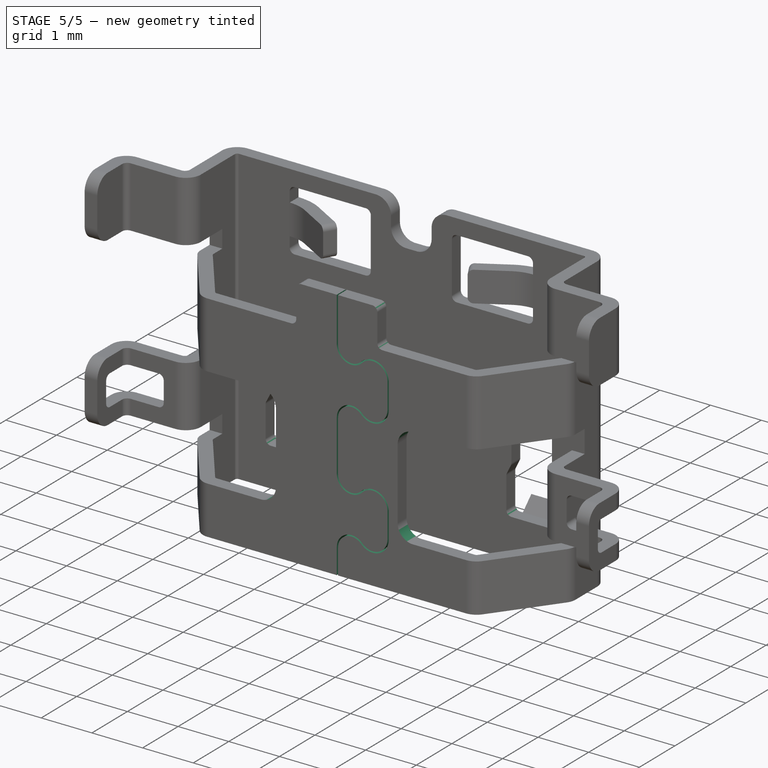
[diagram: stage 5 of 5 — iso view after this stage's code; geometry added in this stage tinted green]
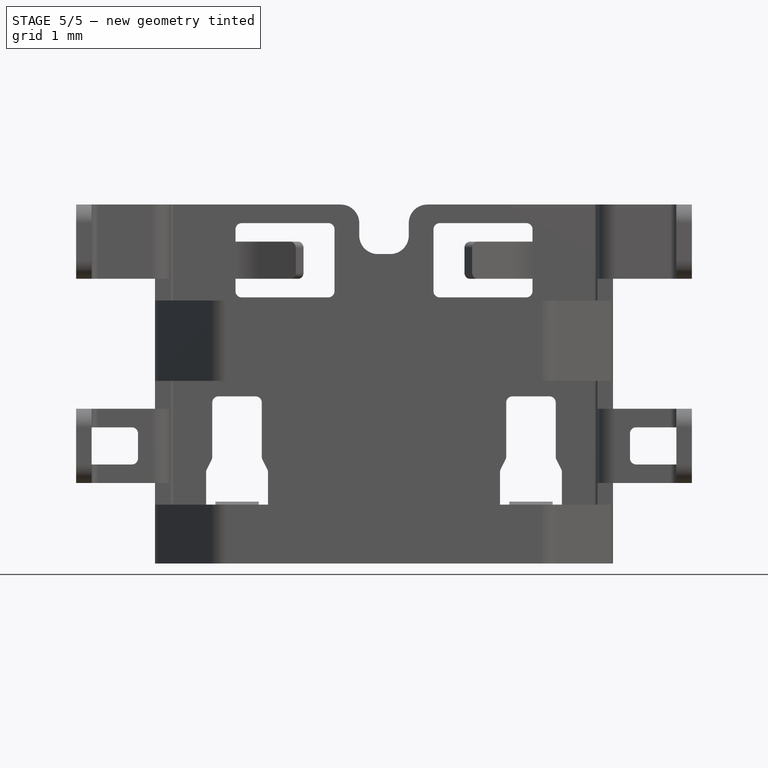
[diagram: stage 5 of 5 — front view after this stage's code; geometry added in this stage tinted green]
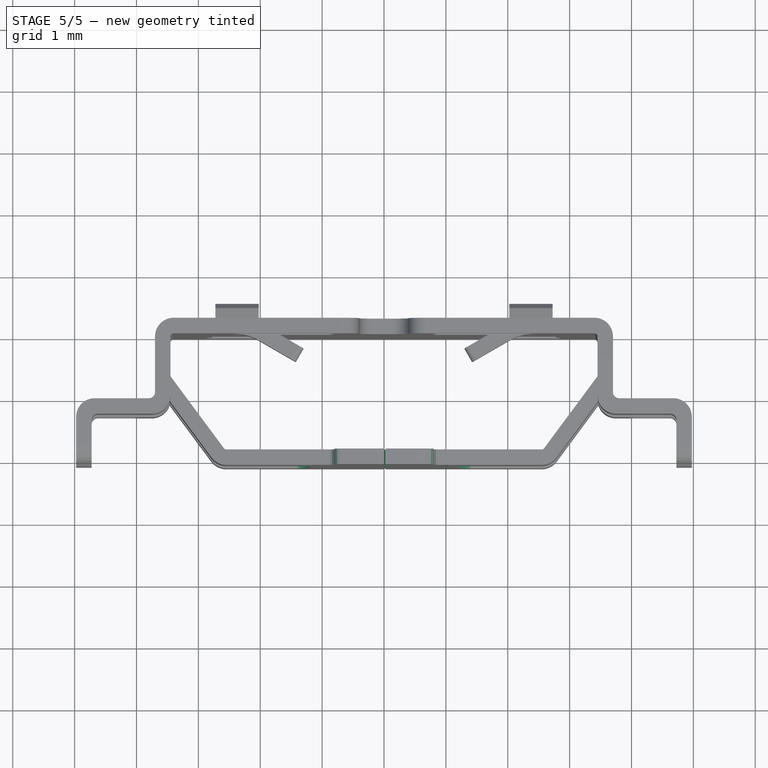
[diagram: stage 5 of 5 — top view after this stage's code; geometry added in this stage tinted green]
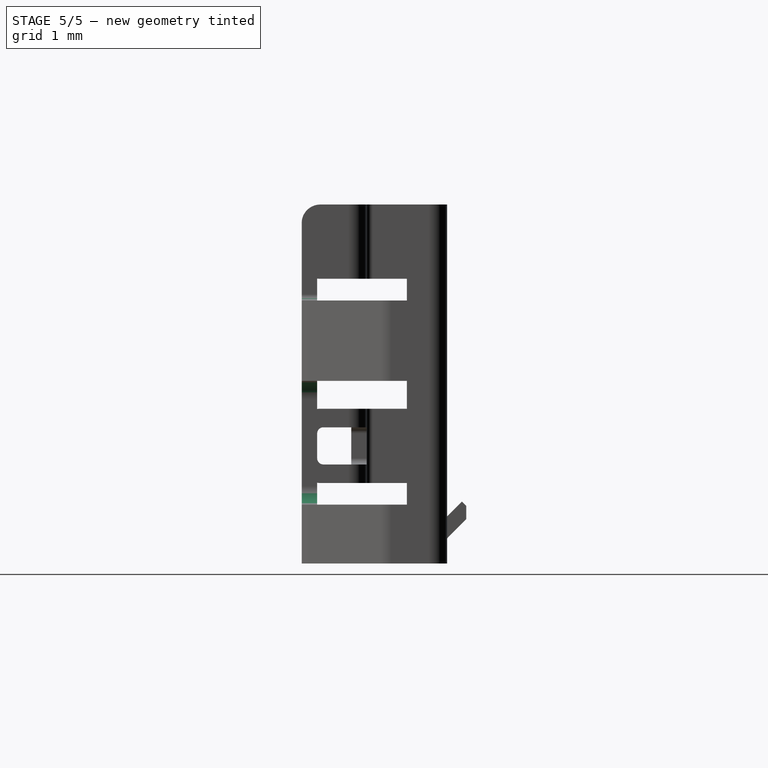
[diagram: stage 5 of 5 — right view after this stage's code; geometry added in this stage tinted green]
FEATURE [PartDesign::Fillet] Fillet005
  Base = -> Fillet004 [Edge390,Edge388,Edge391,Edge393]
  BaseFeature = -> Fillet004
  Radius = 0.1
FEATURE [PartDesign::Fillet] Fillet006
  Base = -> Fillet005 [Face171,Face170]
  BaseFeature = -> Fillet005
  Radius = 0.05
FEATURE [PartDesign::Fillet] Fillet007
  Base = -> Fillet006 [Edge454,Edge433,Edge512,Edge486]
  BaseFeature = -> Fillet006
  Radius = 0.3
FEATURE [PartDesign::Fillet] Fillet008
  Base = -> Fillet007 [Edge452,Edge450,Edge448,Edge454,Edge456,Edge455,Edge449,Edge451]
  BaseFeature = -> Fillet007
  Radius = 0.1
FEATURE [PartDesign::Fillet] Fillet009
  Base = -> Fillet008 [Edge237,Edge233,Edge235,Edge231,Edge239,Edge243,Edge247,Edge245]
  BaseFeature = -> Fillet008
  Radius = 0.1
FEATURE [Sketcher::SketchObject] Sketch013
  ExternalGeometry = -> [Fillet009]
  MapMode = 5
  Placement = pos=(0,-1.1,0) rot=(1,0,0;1.5708rad)
  Support = -> [Fillet009]
  sketch-geometry (32):
    g0: LineSegment StartX=0 StartY=0 StartZ=0 EndX=0 EndY=0.5 EndZ=0
    g1: ArcOfCircle CenterX=0.291007 CenterY=0.5 CenterZ=0 NormalX=0 NormalY=0 NormalZ=1 AngleXU=0 Radius=0.291007 StartAngle=0.769622 EndAngle=3.14159
    g2: ArcOfCircle CenterX=0.708993 CenterY=0.905002 CenterZ=0 NormalX=0 NormalY=0 NormalZ=1 AngleXU=0 Radius=0.291007 StartAngle=3.91121 EndAngle=6.28319
    g3: LineSegment StartX=1 StartY=0.905002 StartZ=0 EndX=1 EndY=1.405 EndZ=0
    g4: ArcOfCircle CenterX=0.708993 CenterY=1.405 CenterZ=0 NormalX=0 NormalY=0 NormalZ=1 AngleXU=0 Radius=0.291007 StartAngle=6.28319 EndAngle=8.65516
    g5: ArcOfCircle CenterX=0.291007 CenterY=1.81 CenterZ=0 NormalX=0 NormalY=0 NormalZ=1 AngleXU=0 Radius=0.291007 StartAngle=3.14161 EndAngle=5.51356
    g6: LineSegment StartX=0 StartY=1.81 StartZ=0 EndX=0 EndY=2.81 EndZ=0
    g7: ArcOfCircle CenterX=0.291007 CenterY=2.81 CenterZ=0 NormalX=0 NormalY=0 NormalZ=1 AngleXU=0 Radius=0.291007 StartAngle=0.769622 EndAngle=3.14159
    g8: ArcOfCircle CenterX=0.708993 CenterY=3.215 CenterZ=0 NormalX=0 NormalY=0 NormalZ=1 AngleXU=0 Radius=0.291007 StartAngle=3.91121 EndAngle=6.28319
    g9: LineSegment StartX=1 StartY=3.215 StartZ=0 EndX=1 EndY=3.715 EndZ=0
    g10: ArcOfCircle CenterX=0.708993 CenterY=3.715 CenterZ=0 NormalX=0 NormalY=0 NormalZ=1 AngleXU=0 Radius=0.291007 StartAngle=4.933e-09 EndAngle=2.37197
    g11: ArcOfCircle CenterX=0.291007 CenterY=4.12 CenterZ=0 NormalX=0 NormalY=0 NormalZ=1 AngleXU=0 Radius=0.291007 StartAngle=3.14159 EndAngle=5.51356
    g12: LineSegment StartX=0 StartY=4.12 StartZ=0 EndX=0 EndY=5 EndZ=0
    g13: LineSegment [constr] StartX=0.5 StartY=0.702501 StartZ=0 EndX=0.5 EndY=1.6075 EndZ=0
    g14: LineSegment StartX=0 StartY=5 StartZ=0 EndX=0.025 EndY=5 EndZ=0
    g15: LineSegment StartX=0.025 StartY=5 StartZ=0 EndX=0.025 EndY=4.12 EndZ=0
    g16: ArcOfCircle CenterX=0.291007 CenterY=4.12 CenterZ=0 NormalX=0 NormalY=0 NormalZ=1 AngleXU=0 Radius=0.266007 StartAngle=3.14159 EndAngle=5.51356
    g17: ArcOfCircle CenterX=0.708993 CenterY=3.715 CenterZ=0 NormalX=0 NormalY=0 NormalZ=1 AngleXU=0 Radius=0.316007 StartAngle=4.543e-09 EndAngle=2.37197
    g18: LineSegment StartX=1.025 StartY=3.715 StartZ=0 EndX=1.025 EndY=3.215 EndZ=0
    g19: ArcOfCircle CenterX=0.708993 CenterY=3.215 CenterZ=0 NormalX=0 NormalY=0 NormalZ=1 AngleXU=0 Radius=0.316007 StartAngle=3.91121 EndAngle=6.28319
    g20: ArcOfCircle CenterX=0.291007 CenterY=2.81 CenterZ=0 NormalX=0 NormalY=0 NormalZ=1 AngleXU=0 Radius=0.266007 StartAngle=0.769622 EndAngle=3.14159
    g21: LineSegment StartX=0.025 StartY=2.81 StartZ=0 EndX=0.025 EndY=1.81001 EndZ=0
    g22: ArcOfCircle CenterX=0.291007 CenterY=1.81 CenterZ=0 NormalX=0 NormalY=0 NormalZ=1 AngleXU=0 Radius=0.266007 StartAngle=3.14157 EndAngle=5.51356
    g23: ArcOfCircle CenterX=0.708993 CenterY=1.405 CenterZ=0 NormalX=0 NormalY=0 NormalZ=1 AngleXU=0 Radius=0.316007 StartAngle=6.28319 EndAngle=8.65516
    g24: LineSegment StartX=1.025 StartY=1.405 StartZ=0 EndX=1.025 EndY=0.905002 EndZ=0
    g25: ArcOfCircle CenterX=0.708993 CenterY=0.905002 CenterZ=0 NormalX=0 NormalY=0 NormalZ=1 AngleXU=0 Radius=0.316007 StartAngle=3.91121 EndAngle=6.28319
    g26: ArcOfCircle CenterX=0.291007 CenterY=0.5 CenterZ=0 NormalX=0 NormalY=0 NormalZ=1 AngleXU=0 Radius=0.266007 StartAngle=0.769622 EndAngle=3.14159
    g27: LineSegment StartX=0.025 StartY=0.5 StartZ=0 EndX=0.025 EndY=0 EndZ=0
    g28: LineSegment StartX=0.025 StartY=0 StartZ=0 EndX=0 EndY=0 EndZ=0
    g29: LineSegment [constr] StartX=1 StartY=3.715 StartZ=0 EndX=1.025 EndY=3.715 EndZ=0
    g30: LineSegment [constr] StartX=0 StartY=2.81 StartZ=0 EndX=0.025 EndY=2.81 EndZ=0
    g31: LineSegment [constr] StartX=1 StartY=1.405 StartZ=0 EndX=1.025 EndY=1.405 EndZ=0
  constraints (105):
    c: Coincident(g0,g-1)
    c: Vertical(g0)
    c: Coincident(g1,g0)
    c: Tangent(g1,g0)
    c: Coincident(g2,g1)
    c: Tangent(g2,g1)
    c: Equal(g1,g2)
    c: Coincident(g3,g2)
    c: Vertical(g3)
    c: Coincident(g4,g3)
    c: PointOnObject(g5,g-2)
    c: Tangent(g2,g3)
    c: Tangent(g4,g3)
    c: Tangent(g4,g5)
    c: Coincident(g6,g5)
    c: Vertical(g6)
    c: Equal(g2,g4)
    c: Equal(g4,g5)
    c: Coincident(g5,g4)
    c: DistanceX(g-2,g2) = 1
    c: Distance(g5,g0) = 1.31
    c: DistanceY(g0,g0) = 0.5
    c: DistanceY(g6,g6) = 1
    c: DistanceY(g3,g3) = 0.5
    c: DistanceX(g-2,g4) = 0.5
    c: Coincident(g7,g6)
    c: Tangent(g7,g6)
    c: Equal(g1,g7)
    c: Coincident(g8,g7)
    c: Tangent(g8,g7)
    c: Equal(g7,g8)
    c: Coincident(g9,g8)
    c: Vertical(g9)
    c: Equal(g9,g3)
    c: Coincident(g10,g9)
    c: Equal(g8,g10)
    c: Coincident(g11,g10)
    c: PointOnObject(g11,g-2)
    c: Equal(g10,g11)
    c: Coincident(g12,g11)
    c: PointOnObject(g12,g-3)
    c: Vertical(g12)
    c: Tangent(g9,g8)
    c: PointOnObject(g8,g3)
    c: Coincident(g13,g1)
    c: Coincident(g13,g4)
    c: Parallel(g13,g-2)
    c: PointOnObject(g14,g-3)
    c: Horizontal(g14)
    c: DistanceX(g14,g14) = 0.025
    c: Coincident(g14,g12)
    c: Coincident(g15,g14)
    c: Vertical(g15)
    c: Equal(g15,g12)
    c: Coincident(g16,g11)
    c: Coincident(g16,g15)
    c: Coincident(g17,g10)
    c: Coincident(g17,g16)
    c: Coincident(g18,g17)
    c: Vertical(g18)
    c: Equal(g18,g9)
    c: Coincident(g19,g8)
    c: Coincident(g19,g18)
    c: Coincident(g20,g7)
    c: Coincident(g20,g19)
    c: Vertical(g21)
    c: Coincident(g22,g5)
    c: Coincident(g22,g21)
    c: Coincident(g23,g4)
    c: Coincident(g23,g22)
    c: Coincident(g24,g23)
    c: Vertical(g24)
    c: Coincident(g25,g2)
    c: Coincident(g25,g24)
    c: Coincident(g26,g1)
    c: Coincident(g26,g25)
    c: Coincident(g27,g26)
    c: PointOnObject(g27,g-1)
    c: Vertical(g27)
    c: Coincident(g28,g27)
    c: Coincident(g28,g-1)
    c: Coincident(g21,g20)
    c: Equal(g0,g27)
    c: Tangent(g24,g25)
    c: Tangent(g24,g23)
    c: Tangent(g18,g17)
    c: Coincident(g29,g9)
    c: Coincident(g29,g17)
    c: Horizontal(g29)
    c: Equal(g14,g29)
    c: Coincident(g30,g6)
    c: Coincident(g30,g20)
    c: Horizontal(g30)
    c: Equal(g29,g30)
    c: Coincident(g31,g3)
    c: Coincident(g31,g23)
    c: Horizontal(g31)
    c: Equal(g31,g30)
    c: Equal(g14,g28)
    c: Tangent(g26,g27)
    c: Tangent(g1,g2)
    c: Tangent(g25,g26)
    c: Tangent(g21,g22)
    c: Tangent(g21,g20)
    c: Tangent(g17,g16)
FEATURE [PartDesign::Pocket] Pocket009
  BaseFeature = -> Fillet009
  Length = 5
  Profile = -> Sketch013
  Type = 2
FEATURE [PartDesign::Body] Body
  Group = -> [Sketch,Pad,Fillet,Sketch001,Pocket,Sketch002,Pocket001,Sketch003,Pad001,LinearPattern,Sketch004,Pocket002,Sketch005,Pocket003,Sketch006,Pocket004,Mirrored,Sketch007,Pocket005,DatumPlane,Sketch008,Pad002,Mirrored001,DatumPlane001,Sketch009,Pad003,Mirrored002,Sketch010,Pocket006,Sketch011,Pocket007,Sketch012,Pocket008,Fillet001,Fillet002,Fillet003,Fillet004,Fillet005,Fillet006,Fillet007,Fillet008,+3 more]
  Origin = -> Origin
  Tip = -> Pocket009
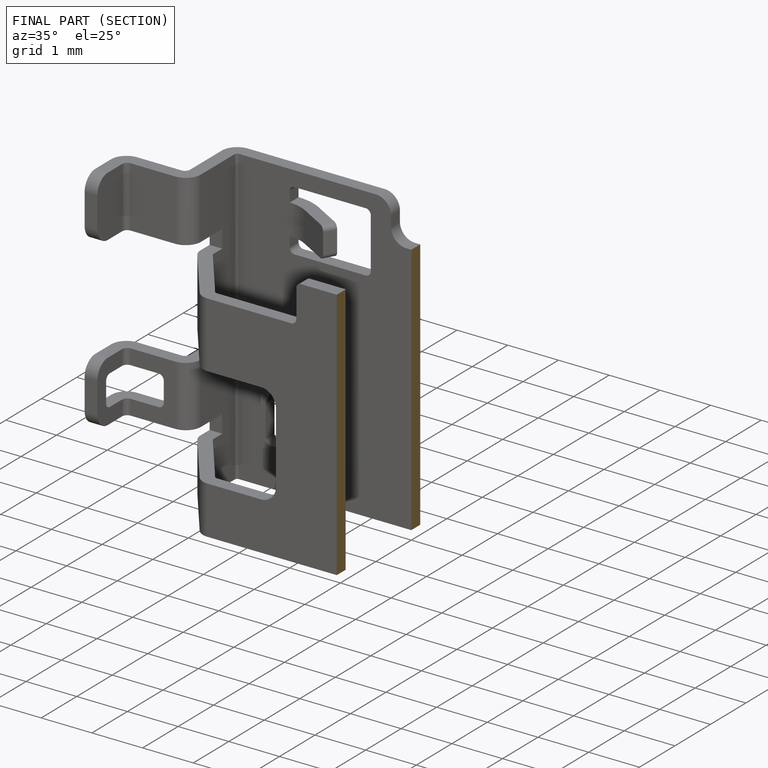
[diagram: finished part — half-section view (interior)]
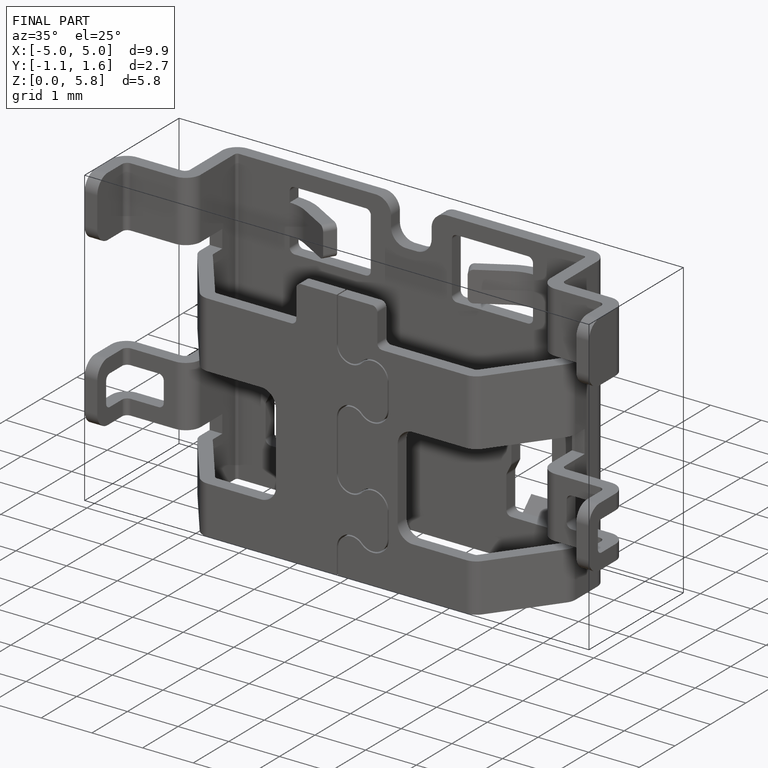
[diagram: finished part — iso view with bounding-box wireframe]
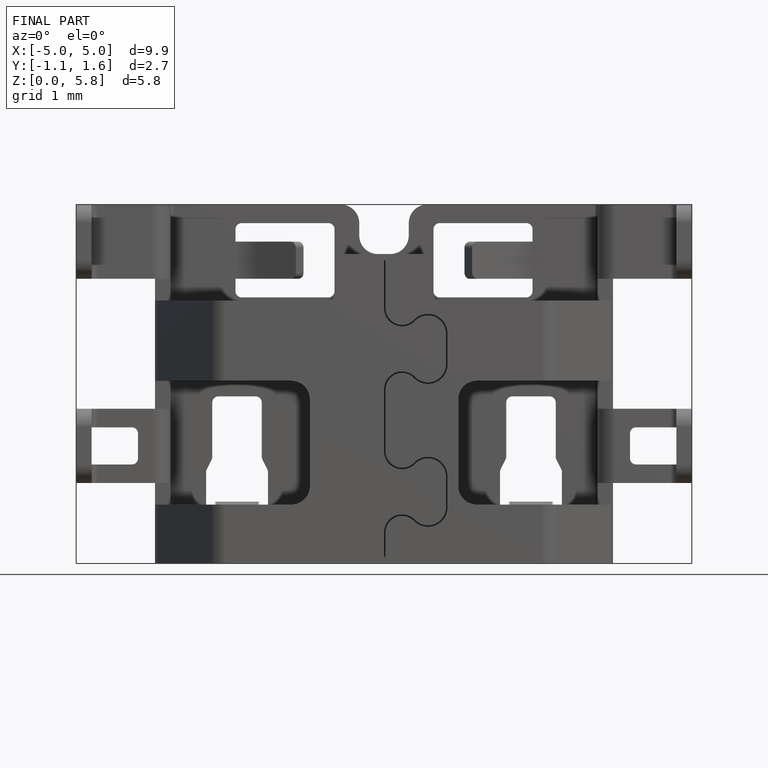
[diagram: finished part — front view with bounding-box wireframe]
